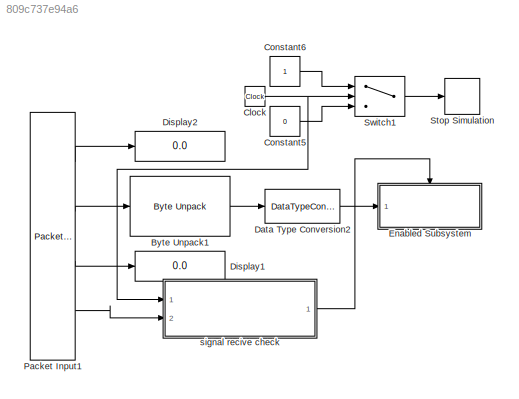
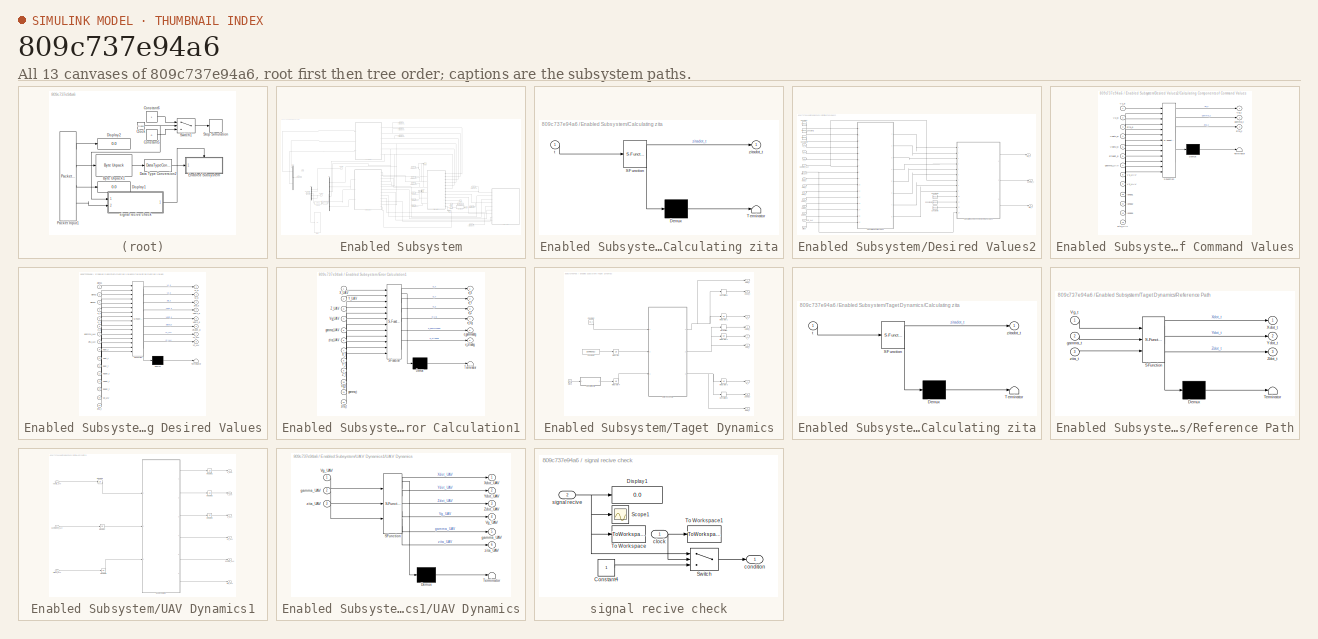
[diagram: thumbnail index - all 13 canvases of the model, root first then tree order]
MODEL slx_809c737e94a6
KIND model
CONFIG AbsTol = auto
CONFIG EnableMultiTasking = off
CONFIG FixedStep = 0.01
CONFIG InitFcn = Initial_Data_Case_3
CONFIG MaxStep = auto
CONFIG MinStep = auto
CONFIG RelTol = 1e-3
CONFIG SampleTimeConstraint = Unconstrained
CONFIG Solver = ode5
CONFIG SolverName = ode5
CONFIG StartTime = 0.0
CONFIG StopTime = 180
BLOCK [Reference] Byte Unpack1  REF=svdutilitieslib/Byte Unpack
  Ports = [1, 1]
  SourceBlock = svdutilitieslib/Byte Unpack
  SourceProductBaseCode = ARDUINO,ML_ARDUINO,ECCORTEXA,ECCORTEXR,SC_BEAGLEBONE_BLUE,EC_FREEDOM_BOARD,EC_FRDM_K64F,INTEL_BLOCKSET,MICROBIT,NUCLEO,PX4AUTOPILOTS,RASPPIIO,STMICRODIS,TIC2000,XILINX_BLOCKSET
  SourceType = Byte Unpack
BLOCK [Clock] Clock
BLOCK [Constant] Constant5
  Value = 0
BLOCK [Constant] Constant6
BLOCK [DataTypeConversion] Data Type Conversion2
  OutDataTypeStr = double
  RndMeth = Floor
  SaturateOnIntegerOverflow = off
BLOCK [Display] Display1
  Decimation = 1
  Ports = [1]
BLOCK [Display] Display2
  Decimation = 1
  Ports = [1]
BLOCK [SubSystem] Enabled Subsystem
  Ports = [1, 0, 1]
  RequestExecContextInheritance = off
  TreatAsAtomicUnit = on
BLOCK [Reference] Enabled Subsystem/Byte Pack  REF=svdutilitieslib/Byte Pack
  Ports = [1, 1]
  SourceBlock = svdutilitieslib/Byte Pack
  SourceProductBaseCode = ARDUINO,ML_ARDUINO,ECCORTEXA,ECCORTEXR,SC_BEAGLEBONE_BLUE,EC_FREEDOM_BOARD,EC_FRDM_K64F,INTEL_BLOCKSET,MICROBIT,NUCLEO,PX4AUTOPILOTS,RASPPIIO,STMICRODIS,TIC2000,XILINX_BLOCKSET
  SourceType = Byte pack
BLOCK [SubSystem] Enabled Subsystem/Calculating zita
  ErrorFcn = Stateflow.Translate.translate
  PermitHierarchicalResolution = ExplicitOnly
  Ports = [1, 1]
  RequestExecContextInheritance = off
  SFBlockType = MATLAB Function
  TreatAsAtomicUnit = on
BLOCK [Demux] Enabled Subsystem/Calculating zita/ Demux 
  Outputs = 1
  Ports = [1, 1]
BLOCK [S-Function] Enabled Subsystem/Calculating zita/ SFunction 
  EnableBusSupport = on
  FunctionName = sf_sfun
  PortCounts = [1 2]
  Ports = [1, 2]
  SFcnIsStateOwnerBlock = off
  SFunctionDeploymentMode = off
  Tag = Stateflow S-Function Project_HIL_Case_3_2018 3
BLOCK [Terminator] Enabled Subsystem/Calculating zita/ Terminator 
BLOCK [Inport] Enabled Subsystem/Calculating zita/t
BLOCK [Outport] Enabled Subsystem/Calculating zita/zitadot_t
  VectorParamsAs1DForOutWhenUnconnected = off
BLOCK [Clock] Enabled Subsystem/Clock
BLOCK [Constant] Enabled Subsystem/Constant
  Value = Vg_t
BLOCK [Constant] Enabled Subsystem/Constant1
  Value = gammadot_t
BLOCK [Constant] Enabled Subsystem/Constant3
  OutDataTypeStr = uint8
BLOCK [Constant] Enabled Subsystem/Constant4
  OutDataTypeStr = uint8
  Value = 12
BLOCK [DataTypeConversion] Enabled Subsystem/Data Type Conversion
  OutDataTypeStr = single
  RndMeth = Floor
  SaturateOnIntegerOverflow = off
BLOCK [Demux] Enabled Subsystem/Demux
  Outputs = 3
  Ports = [1, 3]
BLOCK [SubSystem] Enabled Subsystem/Desired Values2
  Ports = [13, 3]
  RequestExecContextInheritance = off
BLOCK [SubSystem] Enabled Subsystem/Desired Values2/Calculating Components of Command Values
  ErrorFcn = Stateflow.Translate.translate
  PermitHierarchicalResolution = ExplicitOnly
  Ports = [13, 3]
  RequestExecContextInheritance = off
  SFBlockType = MATLAB Function
  TreatAsAtomicUnit = on
BLOCK [Demux] Enabled Subsystem/Desired Values2/Calculating Components of Command Values/ Demux 
  Outputs = 1
  Ports = [1, 1]
BLOCK [S-Function] Enabled Subsystem/Desired Values2/Calculating Components of Command Values/ SFunction 
  EnableBusSupport = on
  FunctionName = sf_sfun
  PortCounts = [13 4]
  Ports = [13, 4]
  SFcnIsStateOwnerBlock = off
  SFunctionDeploymentMode = off
  Tag = Stateflow S-Function Project_HIL_Case_3_2018 6
BLOCK [Terminator] Enabled Subsystem/Desired Values2/Calculating Components of Command Values/ Terminator 
BLOCK [Inport] Enabled Subsystem/Desired Values2/Calculating Components of Command Values/V1_UAV
  Port = 8
BLOCK [Inport] Enabled Subsystem/Desired Values2/Calculating Components of Command Values/V1_d
BLOCK [Inport] Enabled Subsystem/Desired Values2/Calculating Components of Command Values/V2_UAV
  Port = 9
BLOCK [Inport] Enabled Subsystem/Desired Values2/Calculating Components of Command Values/V2_d
  Port = 2
BLOCK [Inport] Enabled Subsystem/Desired Values2/Calculating Components of Command Values/Vdot1_d
  Port = 4
BLOCK [Inport] Enabled Subsystem/Desired Values2/Calculating Components of Command Values/Vdot2_d
  Port = 5
BLOCK [Outport] Enabled Subsystem/Desired Values2/Calculating Components of Command Values/Vg_c
  VectorParamsAs1DForOutWhenUnconnected = off
BLOCK [Inport] Enabled Subsystem/Desired Values2/Calculating Components of Command Values/gamma_UAV
  Port = 7
BLOCK [Outport] Enabled Subsystem/Desired Values2/Calculating Components of Command Values/gamma_c
  Port = 2
  VectorParamsAs1DForOutWhenUnconnected = off
BLOCK [Inport] Enabled Subsystem/Desired Values2/Calculating Components of Command Values/landa1
  Port = 10
BLOCK [Inport] Enabled Subsystem/Desired Values2/Calculating Components of Command Values/landa2
  Port = 11
BLOCK [Inport] Enabled Subsystem/Desired Values2/Calculating Components of Command Values/landa3
  Port = 12
BLOCK [Inport] Enabled Subsystem/Desired Values2/Calculating Components of Command Values/zita_UAV
  Port = 13
BLOCK [Outport] Enabled Subsystem/Desired Values2/Calculating Components of Command Values/zita_c
  Port = 3
  VectorParamsAs1DForOutWhenUnconnected = off
BLOCK [Inport] Enabled Subsystem/Desired Values2/Calculating Components of Command Values/zita_d
  Port = 3
BLOCK [Inport] Enabled Subsystem/Desired Values2/Calculating Components of Command Values/zitadot_d
  Port = 6
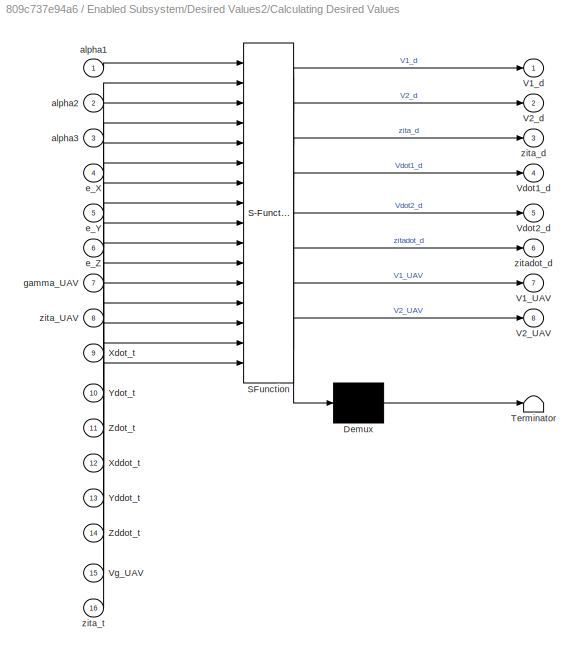
BLOCK [SubSystem] Enabled Subsystem/Desired Values2/Calculating Desired Values
  ErrorFcn = Stateflow.Translate.translate
  PermitHierarchicalResolution = ExplicitOnly
  Ports = [16, 8]
  RequestExecContextInheritance = off
  SFBlockType = MATLAB Function
  TreatAsAtomicUnit = on
BLOCK [Demux] Enabled Subsystem/Desired Values2/Calculating Desired Values/ Demux 
  Outputs = 1
  Ports = [1, 1]
BLOCK [S-Function] Enabled Subsystem/Desired Values2/Calculating Desired Values/ SFunction 
  EnableBusSupport = on
  FunctionName = sf_sfun
  PortCounts = [16 9]
  Ports = [16, 9]
  SFcnIsStateOwnerBlock = off
  SFunctionDeploymentMode = off
  Tag = Stateflow S-Function Project_HIL_Case_3_2018 7
BLOCK [Terminator] Enabled Subsystem/Desired Values2/Calculating Desired Values/ Terminator 
BLOCK [Outport] Enabled Subsystem/Desired Values2/Calculating Desired Values/V1_UAV
  Port = 7
  VectorParamsAs1DForOutWhenUnconnected = off
BLOCK [Outport] Enabled Subsystem/Desired Values2/Calculating Desired Values/V1_d
  VectorParamsAs1DForOutWhenUnconnected = off
BLOCK [Outport] Enabled Subsystem/Desired Values2/Calculating Desired Values/V2_UAV
  Port = 8
  VectorParamsAs1DForOutWhenUnconnected = off
BLOCK [Outport] Enabled Subsystem/Desired Values2/Calculating Desired Values/V2_d
  Port = 2
  VectorParamsAs1DForOutWhenUnconnected = off
BLOCK [Outport] Enabled Subsystem/Desired Values2/Calculating Desired Values/Vdot1_d
  Port = 4
  VectorParamsAs1DForOutWhenUnconnected = off
BLOCK [Outport] Enabled Subsystem/Desired Values2/Calculating Desired Values/Vdot2_d
  Port = 5
  VectorParamsAs1DForOutWhenUnconnected = off
BLOCK [Inport] Enabled Subsystem/Desired Values2/Calculating Desired Values/Vg_UAV
  Port = 15
BLOCK [Inport] Enabled Subsystem/Desired Values2/Calculating Desired Values/Xddot_t
  Port = 12
BLOCK [Inport] Enabled Subsystem/Desired Values2/Calculating Desired Values/Xdot_t
  Port = 9
BLOCK [Inport] Enabled Subsystem/Desired Values2/Calculating Desired Values/Yddot_t
  Port = 13
BLOCK [Inport] Enabled Subsystem/Desired Values2/Calculating Desired Values/Ydot_t
  Port = 10
BLOCK [Inport] Enabled Subsystem/Desired Values2/Calculating Desired Values/Zddot_t
  Port = 14
BLOCK [Inport] Enabled Subsystem/Desired Values2/Calculating Desired Values/Zdot_t
  Port = 11
BLOCK [Inport] Enabled Subsystem/Desired Values2/Calculating Desired Values/alpha1
BLOCK [Inport] Enabled Subsystem/Desired Values2/Calculating Desired Values/alpha2
  Port = 2
BLOCK [Inport] Enabled Subsystem/Desired Values2/Calculating Desired Values/alpha3
  Port = 3
BLOCK [Inport] Enabled Subsystem/Desired Values2/Calculating Desired Values/e_X
  Port = 4
BLOCK [Inport] Enabled Subsystem/Desired Values2/Calculating Desired Values/e_Y
  Port = 5
BLOCK [Inport] Enabled Subsystem/Desired Values2/Calculating Desired Values/e_Z
  Port = 6
BLOCK [Inport] Enabled Subsystem/Desired Values2/Calculating Desired Values/gamma_UAV
  Port = 7
BLOCK [Inport] Enabled Subsystem/Desired Values2/Calculating Desired Values/zita_UAV
  Port = 8
BLOCK [Outport] Enabled Subsystem/Desired Values2/Calculating Desired Values/zita_d
  Port = 3
  VectorParamsAs1DForOutWhenUnconnected = off
BLOCK [Inport] Enabled Subsystem/Desired Values2/Calculating Desired Values/zita_t
  Port = 16
BLOCK [Outport] Enabled Subsystem/Desired Values2/Calculating Desired Values/zitadot_d
  Port = 6
  VectorParamsAs1DForOutWhenUnconnected = off
BLOCK [Constant] Enabled Subsystem/Desired Values2/Constant
  Value = alpha1
BLOCK [Constant] Enabled Subsystem/Desired Values2/Constant1
  Value = alpha2
BLOCK [Constant] Enabled Subsystem/Desired Values2/Constant2
  Value = alpha3
BLOCK [Constant] Enabled Subsystem/Desired Values2/Constant3
  Value = landa1
BLOCK [Constant] Enabled Subsystem/Desired Values2/Constant4
  Value = landa2
BLOCK [Constant] Enabled Subsystem/Desired Values2/Constant5
  Value = landa3
BLOCK [Inport] Enabled Subsystem/Desired Values2/Vg_UAV
  Port = 12
BLOCK [Outport] Enabled Subsystem/Desired Values2/Vg_c
  VectorParamsAs1DForOutWhenUnconnected = off
BLOCK [Inport] Enabled Subsystem/Desired Values2/Xddot_t
  Port = 9
BLOCK [Inport] Enabled Subsystem/Desired Values2/Xdot_t
  Port = 6
BLOCK [Inport] Enabled Subsystem/Desired Values2/Yddot_t
  Port = 10
BLOCK [Inport] Enabled Subsystem/Desired Values2/Ydot_t
  Port = 7
BLOCK [Inport] Enabled Subsystem/Desired Values2/Zddot_t
  Port = 11
BLOCK [Inport] Enabled Subsystem/Desired Values2/Zdot_t
  Port = 8
BLOCK [Inport] Enabled Subsystem/Desired Values2/e_X
BLOCK [Inport] Enabled Subsystem/Desired Values2/e_Y
  Port = 2
BLOCK [Inport] Enabled Subsystem/Desired Values2/e_Z
  Port = 3
BLOCK [Inport] Enabled Subsystem/Desired Values2/gamma_UAV
  Port = 4
BLOCK [Outport] Enabled Subsystem/Desired Values2/gamma_c
  Port = 2
  VectorParamsAs1DForOutWhenUnconnected = off
BLOCK [Inport] Enabled Subsystem/Desired Values2/zita_UAV
  Port = 5
BLOCK [Outport] Enabled Subsystem/Desired Values2/zita_c
  Port = 3
  VectorParamsAs1DForOutWhenUnconnected = off
BLOCK [Inport] Enabled Subsystem/Desired Values2/zita_t
  Port = 13
BLOCK [Display] Enabled Subsystem/Display
  Decimation = 1
  Ports = [1]
BLOCK [EnablePort] Enabled Subsystem/Enable
  Ports = []
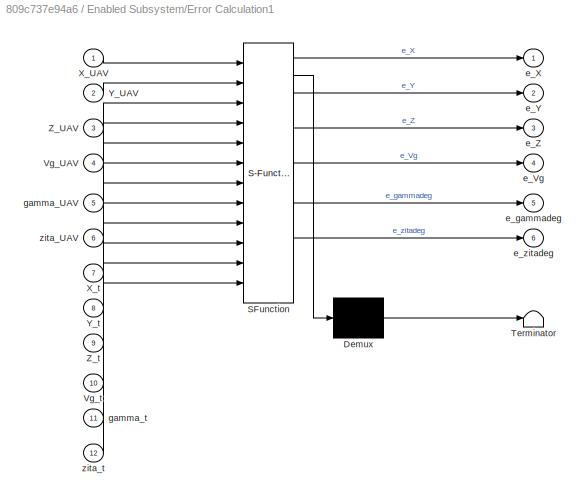
BLOCK [SubSystem] Enabled Subsystem/Error Calculation1
  ErrorFcn = Stateflow.Translate.translate
  PermitHierarchicalResolution = ExplicitOnly
  Ports = [12, 6]
  RequestExecContextInheritance = off
  SFBlockType = MATLAB Function
  TreatAsAtomicUnit = on
BLOCK [Demux] Enabled Subsystem/Error Calculation1/ Demux 
  Outputs = 1
  Ports = [1, 1]
BLOCK [S-Function] Enabled Subsystem/Error Calculation1/ SFunction 
  EnableBusSupport = on
  FunctionName = sf_sfun
  PortCounts = [12 7]
  Ports = [12, 7]
  SFcnIsStateOwnerBlock = off
  SFunctionDeploymentMode = off
  Tag = Stateflow S-Function Project_HIL_Case_3_2018 13
BLOCK [Terminator] Enabled Subsystem/Error Calculation1/ Terminator 
BLOCK [Inport] Enabled Subsystem/Error Calculation1/Vg_UAV
  Port = 4
BLOCK [Inport] Enabled Subsystem/Error Calculation1/Vg_t
  Port = 10
BLOCK [Inport] Enabled Subsystem/Error Calculation1/X_UAV
BLOCK [Inport] Enabled Subsystem/Error Calculation1/X_t
  Port = 7
BLOCK [Inport] Enabled Subsystem/Error Calculation1/Y_UAV
  Port = 2
BLOCK [Inport] Enabled Subsystem/Error Calculation1/Y_t
  Port = 8
BLOCK [Inport] Enabled Subsystem/Error Calculation1/Z_UAV
  Port = 3
BLOCK [Inport] Enabled Subsystem/Error Calculation1/Z_t
  Port = 9
BLOCK [Outport] Enabled Subsystem/Error Calculation1/e_Vg
  Port = 4
  VectorParamsAs1DForOutWhenUnconnected = off
BLOCK [Outport] Enabled Subsystem/Error Calculation1/e_X
  VectorParamsAs1DForOutWhenUnconnected = off
BLOCK [Outport] Enabled Subsystem/Error Calculation1/e_Y
  Port = 2
  VectorParamsAs1DForOutWhenUnconnected = off
BLOCK [Outport] Enabled Subsystem/Error Calculation1/e_Z
  Port = 3
  VectorParamsAs1DForOutWhenUnconnected = off
BLOCK [Outport] Enabled Subsystem/Error Calculation1/e_gammadeg
  Port = 5
  VectorParamsAs1DForOutWhenUnconnected = off
BLOCK [Outport] Enabled Subsystem/Error Calculation1/e_zitadeg
  Port = 6
  VectorParamsAs1DForOutWhenUnconnected = off
BLOCK [Inport] Enabled Subsystem/Error Calculation1/gamma_UAV
  Port = 5
BLOCK [Inport] Enabled Subsystem/Error Calculation1/gamma_t
  Port = 11
BLOCK [Inport] Enabled Subsystem/Error Calculation1/zita_UAV
  Port = 6
BLOCK [Inport] Enabled Subsystem/Error Calculation1/zita_t
  Port = 12
BLOCK [Gain] Enabled Subsystem/Gain
  Gain = 180/pi
BLOCK [Integrator] Enabled Subsystem/Integrator
  InitialCondition = 45*pi/180
  Ports = [1, 1]
BLOCK [Integrator] Enabled Subsystem/Integrator1
  InitialCondition = 0*pi/180
  Ports = [1, 1]
BLOCK [Mux] Enabled Subsystem/Mux
  DisplayOption = bar
  Inputs = 6
  Ports = [6, 1]
BLOCK [Mux] Enabled Subsystem/Mux1
  DisplayOption = bar
  Inputs = 5
  Ports = [5, 1]
BLOCK [Reference] Enabled Subsystem/Packet Output  REF=sldrtlib/Packet Output
  AttributesFormatString = Serial Port [5]
  Ports = [1]
  SourceBlock = sldrtlib/Packet Output
  SourceProductBaseCode = WT
  SourceType = Simulink Desktop Real-Time Packet Output
BLOCK [Scope] Enabled Subsystem/Scope1
  Floating = off
  NumInputPorts = 3
  Ports = [3]
  ScopeSpecificationString = Simulink.scopes.TimeScopeBlockCfg('CurrentConfiguration', extmgr.ConfigurationSet(extmgr.Configuration('Core','General UI',true,'FigureColor',[1 1 1]),extmgr.Configuration('Core','Source UI',true),extmgr.Configuration('Sources','WiredSimulink',true,'DataLoggingVariableName','ScopeData2'),extmgr.Configuration('Visuals','Time Domain',true,'SerializedDisplays',{struct('MinYLimReal','-22.82649','MaxYL...<+3126ch>
BLOCK [Scope] Enabled Subsystem/Scope2
  Floating = off
  NumInputPorts = 3
  Ports = [3]
  ScopeSpecificationString = Simulink.scopes.TimeScopeBlockCfg('CurrentConfiguration', extmgr.ConfigurationSet(extmgr.Configuration('Core','General UI',true,'FigureColor',[1 1 1]),extmgr.Configuration('Core','Source UI',true),extmgr.Configuration('Sources','WiredSimulink',true,'DataLoggingVariableName','ScopeData1'),extmgr.Configuration('Visuals','Time Domain',true,'SerializedDisplays',{struct('MinYLimReal','-3.44075','MaxYLi...<+3145ch>
BLOCK [SubSystem] Enabled Subsystem/Taget Dynamics
  Ports = [0, 9]
  RequestExecContextInheritance = off
BLOCK [SubSystem] Enabled Subsystem/Taget Dynamics/Calculating zita
  ErrorFcn = Stateflow.Translate.translate
  PermitHierarchicalResolution = ExplicitOnly
  Ports = [1, 1]
  RequestExecContextInheritance = off
  SFBlockType = MATLAB Function
  TreatAsAtomicUnit = on
BLOCK [Demux] Enabled Subsystem/Taget Dynamics/Calculating zita/ Demux 
  Outputs = 1
  Ports = [1, 1]
BLOCK [S-Function] Enabled Subsystem/Taget Dynamics/Calculating zita/ SFunction 
  EnableBusSupport = on
  FunctionName = sf_sfun
  PortCounts = [1 2]
  Ports = [1, 2]
  SFcnIsStateOwnerBlock = off
  SFunctionDeploymentMode = off
  Tag = Stateflow S-Function Project_HIL_Case_3_2018 2
BLOCK [Terminator] Enabled Subsystem/Taget Dynamics/Calculating zita/ Terminator 
BLOCK [Inport] Enabled Subsystem/Taget Dynamics/Calculating zita/t
BLOCK [Outport] Enabled Subsystem/Taget Dynamics/Calculating zita/zitadot_t
  VectorParamsAs1DForOutWhenUnconnected = off
BLOCK [Clock] Enabled Subsystem/Taget Dynamics/Clock
BLOCK [Constant] Enabled Subsystem/Taget Dynamics/Constant
  Value = Vg_t
BLOCK [Constant] Enabled Subsystem/Taget Dynamics/Constant1
  Value = gammadot_t
BLOCK [Derivative] Enabled Subsystem/Taget Dynamics/Derivative
BLOCK [Derivative] Enabled Subsystem/Taget Dynamics/Derivative1
BLOCK [Derivative] Enabled Subsystem/Taget Dynamics/Derivative2
BLOCK [Integrator] Enabled Subsystem/Taget Dynamics/Integrator
  InitialCondition = 45*pi/180
  Ports = [1, 1]
BLOCK [Integrator] Enabled Subsystem/Taget Dynamics/Integrator1
  InitialCondition = 100
  Ports = [1, 1]
BLOCK [Integrator] Enabled Subsystem/Taget Dynamics/Integrator2
  InitialCondition = 100
  Ports = [1, 1]
BLOCK [Integrator] Enabled Subsystem/Taget Dynamics/Integrator3
  InitialCondition = 100
  Ports = [1, 1]
BLOCK [Integrator] Enabled Subsystem/Taget Dynamics/Integrator4
  InitialCondition = 0*pi/180
  Ports = [1, 1]
BLOCK [SubSystem] Enabled Subsystem/Taget Dynamics/Reference Path
  ErrorFcn = Stateflow.Translate.translate
  PermitHierarchicalResolution = ExplicitOnly
  Ports = [3, 3]
  RequestExecContextInheritance = off
  SFBlockType = MATLAB Function
  TreatAsAtomicUnit = on
BLOCK [Demux] Enabled Subsystem/Taget Dynamics/Reference Path/ Demux 
  Outputs = 1
  Ports = [1, 1]
BLOCK [S-Function] Enabled Subsystem/Taget Dynamics/Reference Path/ SFunction 
  EnableBusSupport = on
  FunctionName = sf_sfun
  PortCounts = [3 4]
  Ports = [3, 4]
  SFcnIsStateOwnerBlock = off
  SFunctionDeploymentMode = off
  Tag = Stateflow S-Function Project_HIL_Case_3_2018 14
BLOCK [Terminator] Enabled Subsystem/Taget Dynamics/Reference Path/ Terminator 
BLOCK [Inport] Enabled Subsystem/Taget Dynamics/Reference Path/Vg_t
BLOCK [Outport] Enabled Subsystem/Taget Dynamics/Reference Path/Xdot_t
  VectorParamsAs1DForOutWhenUnconnected = off
BLOCK [Outport] Enabled Subsystem/Taget Dynamics/Reference Path/Ydot_t
  Port = 2
  VectorParamsAs1DForOutWhenUnconnected = off
BLOCK [Outport] Enabled Subsystem/Taget Dynamics/Reference Path/Zdot_t
  Port = 3
  VectorParamsAs1DForOutWhenUnconnected = off
BLOCK [Inport] Enabled Subsystem/Taget Dynamics/Reference Path/gamma_t
  Port = 2
BLOCK [Inport] Enabled Subsystem/Taget Dynamics/Reference Path/zita_t
  Port = 3
BLOCK [Outport] Enabled Subsystem/Taget Dynamics/X_t
  VectorParamsAs1DForOutWhenUnconnected = off
BLOCK [Outport] Enabled Subsystem/Taget Dynamics/Xddot_t
  Port = 2
  VectorParamsAs1DForOutWhenUnconnected = off
BLOCK [Outport] Enabled Subsystem/Taget Dynamics/Xdot_t
  Port = 3
  VectorParamsAs1DForOutWhenUnconnected = off
BLOCK [Outport] Enabled Subsystem/Taget Dynamics/Y_t
  Port = 4
  VectorParamsAs1DForOutWhenUnconnected = off
BLOCK [Outport] Enabled Subsystem/Taget Dynamics/Yddot_t
  Port = 5
  VectorParamsAs1DForOutWhenUnconnected = off
BLOCK [Outport] Enabled Subsystem/Taget Dynamics/Ydot_t
  Port = 6
  VectorParamsAs1DForOutWhenUnconnected = off
BLOCK [Outport] Enabled Subsystem/Taget Dynamics/Z_t
  Port = 7
  VectorParamsAs1DForOutWhenUnconnected = off
BLOCK [Outport] Enabled Subsystem/Taget Dynamics/Zddot_t
  Port = 8
  VectorParamsAs1DForOutWhenUnconnected = off
BLOCK [Outport] Enabled Subsystem/Taget Dynamics/Zdot_t
  Port = 9
  VectorParamsAs1DForOutWhenUnconnected = off
BLOCK [ToWorkspace] Enabled Subsystem/To Workspace13
  FixptAsFi = on
  MaxDataPoints = inf
  Ports = [1]
  SampleTime = -1
  SaveFormat = Timeseries
  VariableName = X_UAV
BLOCK [ToWorkspace] Enabled Subsystem/To Workspace14
  FixptAsFi = on
  MaxDataPoints = inf
  Ports = [1]
  SampleTime = -1
  SaveFormat = Timeseries
  VariableName = Y_UAV
BLOCK [ToWorkspace] Enabled Subsystem/To Workspace15
  FixptAsFi = on
  MaxDataPoints = inf
  Ports = [1]
  SampleTime = -1
  SaveFormat = Timeseries
  VariableName = Z_UAV
BLOCK [ToWorkspace] Enabled Subsystem/To Workspace16
  FixptAsFi = on
  MaxDataPoints = inf
  Ports = [1]
  SampleTime = -1
  SaveFormat = Timeseries
  VariableName = e_X
BLOCK [ToWorkspace] Enabled Subsystem/To Workspace17
  FixptAsFi = on
  MaxDataPoints = inf
  Ports = [1]
  SampleTime = -1
  SaveFormat = Timeseries
  VariableName = e_Y
BLOCK [ToWorkspace] Enabled Subsystem/To Workspace18
  FixptAsFi = on
  MaxDataPoints = inf
  Ports = [1]
  SampleTime = -1
  SaveFormat = Timeseries
  VariableName = e_Z
BLOCK [ToWorkspace] Enabled Subsystem/To Workspace19
  FixptAsFi = on
  MaxDataPoints = inf
  Ports = [1]
  SampleTime = -1
  SaveFormat = Timeseries
  VariableName = e_Vg
BLOCK [ToWorkspace] Enabled Subsystem/To Workspace20
  FixptAsFi = on
  MaxDataPoints = inf
  Ports = [1]
  SampleTime = -1
  SaveFormat = Timeseries
  VariableName = e_gammadeg
BLOCK [ToWorkspace] Enabled Subsystem/To Workspace21
  FixptAsFi = on
  MaxDataPoints = inf
  Ports = [1]
  SampleTime = -1
  SaveFormat = Timeseries
  VariableName = e_zitadeg
BLOCK [ToWorkspace] Enabled Subsystem/To Workspace25
  FixptAsFi = on
  MaxDataPoints = inf
  Ports = [1]
  SampleTime = -1
  SaveFormat = Timeseries
  VariableName = X_t
BLOCK [ToWorkspace] Enabled Subsystem/To Workspace26
  FixptAsFi = on
  MaxDataPoints = inf
  Ports = [1]
  SampleTime = -1
  SaveFormat = Timeseries
  VariableName = Y_t
BLOCK [ToWorkspace] Enabled Subsystem/To Workspace27
  FixptAsFi = on
  MaxDataPoints = inf
  Ports = [1]
  SampleTime = -1
  SaveFormat = Timeseries
  VariableName = Z_t
BLOCK [SubSystem] Enabled Subsystem/UAV Dynamics1
  Ports = [3, 6]
  RequestExecContextInheritance = off
BLOCK [Integrator] Enabled Subsystem/UAV Dynamics1/Integrator1
  InitialCondition = 80
  Ports = [1, 1]
BLOCK [Integrator] Enabled Subsystem/UAV Dynamics1/Integrator2
  InitialCondition = 90
  Ports = [1, 1]
BLOCK [Integrator] Enabled Subsystem/UAV Dynamics1/Integrator3
  InitialCondition = 70
  Ports = [1, 1]
BLOCK [Integrator] Enabled Subsystem/UAV Dynamics1/Integrator6
  InitialCondition = 8
  Ports = [1, 1]
BLOCK [Integrator] Enabled Subsystem/UAV Dynamics1/Integrator7
  InitialCondition = 0*pi/180
  Ports = [1, 1]
BLOCK [Integrator] Enabled Subsystem/UAV Dynamics1/Integrator8
  InitialCondition = 0*pi/180
  Ports = [1, 1]
BLOCK [SubSystem] Enabled Subsystem/UAV Dynamics1/UAV Dynamics
  ErrorFcn = Stateflow.Translate.translate
  PermitHierarchicalResolution = ExplicitOnly
  Ports = [3, 6]
  RequestExecContextInheritance = off
  SFBlockType = MATLAB Function
  TreatAsAtomicUnit = on
BLOCK [Demux] Enabled Subsystem/UAV Dynamics1/UAV Dynamics/ Demux 
  Outputs = 1
  Ports = [1, 1]
BLOCK [S-Function] Enabled Subsystem/UAV Dynamics1/UAV Dynamics/ SFunction 
  EnableBusSupport = on
  FunctionName = sf_sfun
  PortCounts = [3 7]
  Ports = [3, 7]
  SFcnIsStateOwnerBlock = off
  SFunctionDeploymentMode = off
  Tag = Stateflow S-Function Project_HIL_Case_3_2018 15
BLOCK [Terminator] Enabled Subsystem/UAV Dynamics1/UAV Dynamics/ Terminator 
BLOCK [Outport] Enabled Subsystem/UAV Dynamics1/UAV Dynamics/Vg_UAV
  Port = 4
  VectorParamsAs1DForOutWhenUnconnected = off
BLOCK [Inport] Enabled Subsystem/UAV Dynamics1/UAV Dynamics/Vg_UAV 
BLOCK [Outport] Enabled Subsystem/UAV Dynamics1/UAV Dynamics/Xdot_UAV
  VectorParamsAs1DForOutWhenUnconnected = off
BLOCK [Outport] Enabled Subsystem/UAV Dynamics1/UAV Dynamics/Ydot_UAV
  Port = 2
  VectorParamsAs1DForOutWhenUnconnected = off
BLOCK [Outport] Enabled Subsystem/UAV Dynamics1/UAV Dynamics/Zdot_UAV
  Port = 3
  VectorParamsAs1DForOutWhenUnconnected = off
BLOCK [Outport] Enabled Subsystem/UAV Dynamics1/UAV Dynamics/gamma_UAV
  Port = 5
  VectorParamsAs1DForOutWhenUnconnected = off
BLOCK [Inport] Enabled Subsystem/UAV Dynamics1/UAV Dynamics/gamma_UAV 
  Port = 2
BLOCK [Outport] Enabled Subsystem/UAV Dynamics1/UAV Dynamics/zita_UAV
  Port = 6
  VectorParamsAs1DForOutWhenUnconnected = off
BLOCK [Inport] Enabled Subsystem/UAV Dynamics1/UAV Dynamics/zita_UAV 
  Port = 3
BLOCK [Inport] Enabled Subsystem/UAV Dynamics1/Vdotg_UAV
BLOCK [Outport] Enabled Subsystem/UAV Dynamics1/Vg_UAV
  Port = 4
  VectorParamsAs1DForOutWhenUnconnected = off
BLOCK [Outport] Enabled Subsystem/UAV Dynamics1/X_UAV
  VectorParamsAs1DForOutWhenUnconnected = off
BLOCK [Outport] Enabled Subsystem/UAV Dynamics1/Y_UAV
  Port = 2
  VectorParamsAs1DForOutWhenUnconnected = off
BLOCK [Outport] Enabled Subsystem/UAV Dynamics1/Z_UAV
  Port = 3
  VectorParamsAs1DForOutWhenUnconnected = off
BLOCK [Outport] Enabled Subsystem/UAV Dynamics1/gamma_UAV
  Port = 5
  VectorParamsAs1DForOutWhenUnconnected = off
BLOCK [Inport] Enabled Subsystem/UAV Dynamics1/gammadot_UAV
  Port = 2
BLOCK [Outport] Enabled Subsystem/UAV Dynamics1/zita_UAV
  Port = 6
  VectorParamsAs1DForOutWhenUnconnected = off
BLOCK [Inport] Enabled Subsystem/UAV Dynamics1/zitadot_UAV
  Port = 3
BLOCK [Inport] Enabled Subsystem/control signals
BLOCK [Reference] Packet Input1  REF=sldrtlib/Packet Input
  AttributesFormatString = Serial Port [5]
  Ports = [0, 4]
  SourceBlock = sldrtlib/Packet Input
  SourceProductBaseCode = WT
  SourceType = Simulink Desktop Real-Time Packet Input
BLOCK [Stop] Stop Simulation
BLOCK [Switch] Switch1
  Criteria = u2 > Threshold
  InputSameDT = off
  SaturateOnIntegerOverflow = off
  Threshold = 179
BLOCK [SubSystem] signal recive check
  Ports = [2, 1]
  RequestExecContextInheritance = off
BLOCK [Constant] signal recive check/Constant4
BLOCK [Display] signal recive check/Display1
  Decimation = 1
  Ports = [1]
BLOCK [Scope] signal recive check/Scope1
  Floating = off
  NumInputPorts = 1
  Ports = [1]
  ScopeSpecificationString = Simulink.scopes.TimeScopeBlockCfg('CurrentConfiguration', extmgr.ConfigurationSet(extmgr.Configuration('Core','General UI',true),extmgr.Configuration('Core','Source UI',true),extmgr.Configuration('Sources','WiredSimulink',true,'DataLoggingVariableName','ScopeData1'),extmgr.Configuration('Visuals','Time Domain',true,'SerializedDisplays',{struct('MinYLimReal','-0.125','MaxYLimReal','1.05336','YLabel...<+1444ch>
BLOCK [Switch] signal recive check/Switch
  Criteria = u2 > Threshold
  InputSameDT = off
  SaturateOnIntegerOverflow = off
  Threshold = 0.005
BLOCK [ToWorkspace] signal recive check/To Workspace
  FixptAsFi = on
  MaxDataPoints = inf
  Ports = [1]
  SampleTime = -1
  VariableName = IsRecived
BLOCK [ToWorkspace] signal recive check/To Workspace1
  FixptAsFi = on
  MaxDataPoints = inf
  Ports = [1]
  SampleTime = -1
  VariableName = Clock
BLOCK [Inport] signal recive check/clock
BLOCK [Outport] signal recive check/condition
BLOCK [Inport] signal recive check/signal recive
  Port = 2
LINE Byte Unpack1:1 -> Data Type Conversion2:1
NET Clock:1 -> Switch1:2, signal recive check:1
LINE Constant5:1 -> Switch1:3
LINE Constant6:1 -> Switch1:1
LINE Data Type Conversion2:1 -> Enabled Subsystem:1
LINE Enabled Subsystem/Byte Pack:1 -> Enabled Subsystem/Mux1:3
LINE Enabled Subsystem/Calculating zita:1 -> Enabled Subsystem/Integrator1:1
LINE Enabled Subsystem/Clock:1 -> Enabled Subsystem/Calculating zita:1
LINE Enabled Subsystem/Constant1:1 -> Enabled Subsystem/Integrator:1
NET Enabled Subsystem/Constant3:1 -> Enabled Subsystem/Mux1:1, Enabled Subsystem/Mux1:2
NET Enabled Subsystem/Constant4:1 -> Enabled Subsystem/Mux1:4, Enabled Subsystem/Mux1:5
LINE Enabled Subsystem/Constant:1 -> Enabled Subsystem/Error Calculation1:10
LINE Enabled Subsystem/Data Type Conversion:1 -> Enabled Subsystem/Byte Pack:1
LINE Enabled Subsystem/Demux:1 -> Enabled Subsystem/UAV Dynamics1:1
LINE Enabled Subsystem/Demux:2 -> Enabled Subsystem/UAV Dynamics1:2
LINE Enabled Subsystem/Demux:3 -> Enabled Subsystem/UAV Dynamics1:3
LINE Enabled Subsystem/Desired Values2/Calculating Components of Command Values:1 -> Enabled Subsystem/Desired Values2/Vg_c:1
LINE Enabled Subsystem/Desired Values2/Calculating Components of Command Values:2 -> Enabled Subsystem/Desired Values2/gamma_c:1
LINE Enabled Subsystem/Desired Values2/Calculating Components of Command Values:3 -> Enabled Subsystem/Desired Values2/zita_c:1
LINE Enabled Subsystem/Desired Values2/Calculating Desired Values:1 -> Enabled Subsystem/Desired Values2/Calculating Components of Command Values:1
LINE Enabled Subsystem/Desired Values2/Calculating Desired Values:2 -> Enabled Subsystem/Desired Values2/Calculating Components of Command Values:2
LINE Enabled Subsystem/Desired Values2/Calculating Desired Values:3 -> Enabled Subsystem/Desired Values2/Calculating Components of Command Values:3
LINE Enabled Subsystem/Desired Values2/Calculating Desired Values:4 -> Enabled Subsystem/Desired Values2/Calculating Components of Command Values:4
LINE Enabled Subsystem/Desired Values2/Calculating Desired Values:5 -> Enabled Subsystem/Desired Values2/Calculating Components of Command Values:5
LINE Enabled Subsystem/Desired Values2/Calculating Desired Values:6 -> Enabled Subsystem/Desired Values2/Calculating Components of Command Values:6
LINE Enabled Subsystem/Desired Values2/Calculating Desired Values:7 -> Enabled Subsystem/Desired Values2/Calculating Components of Command Values:8
LINE Enabled Subsystem/Desired Values2/Calculating Desired Values:8 -> Enabled Subsystem/Desired Values2/Calculating Components of Command Values:9
LINE Enabled Subsystem/Desired Values2/Constant1:1 -> Enabled Subsystem/Desired Values2/Calculating Desired Values:2
LINE Enabled Subsystem/Desired Values2/Constant2:1 -> Enabled Subsystem/Desired Values2/Calculating Desired Values:3
LINE Enabled Subsystem/Desired Values2/Constant3:1 -> Enabled Subsystem/Desired Values2/Calculating Components of Command Values:10
LINE Enabled Subsystem/Desired Values2/Constant4:1 -> Enabled Subsystem/Desired Values2/Calculating Components of Command Values:11
LINE Enabled Subsystem/Desired Values2/Constant5:1 -> Enabled Subsystem/Desired Values2/Calculating Components of Command Values:12
LINE Enabled Subsystem/Desired Values2/Constant:1 -> Enabled Subsystem/Desired Values2/Calculating Desired Values:1
LINE Enabled Subsystem/Desired Values2/Vg_UAV:1 -> Enabled Subsystem/Desired Values2/Calculating Desired Values:15
LINE Enabled Subsystem/Desired Values2/Xddot_t:1 -> Enabled Subsystem/Desired Values2/Calculating Desired Values:12
LINE Enabled Subsystem/Desired Values2/Xdot_t:1 -> Enabled Subsystem/Desired Values2/Calculating Desired Values:9
LINE Enabled Subsystem/Desired Values2/Yddot_t:1 -> Enabled Subsystem/Desired Values2/Calculating Desired Values:13
LINE Enabled Subsystem/Desired Values2/Ydot_t:1 -> Enabled Subsystem/Desired Values2/Calculating Desired Values:10
LINE Enabled Subsystem/Desired Values2/Zddot_t:1 -> Enabled Subsystem/Desired Values2/Calculating Desired Values:14
LINE Enabled Subsystem/Desired Values2/Zdot_t:1 -> Enabled Subsystem/Desired Values2/Calculating Desired Values:11
LINE Enabled Subsystem/Desired Values2/e_X:1 -> Enabled Subsystem/Desired Values2/Calculating Desired Values:4
LINE Enabled Subsystem/Desired Values2/e_Y:1 -> Enabled Subsystem/Desired Values2/Calculating Desired Values:5
LINE Enabled Subsystem/Desired Values2/e_Z:1 -> Enabled Subsystem/Desired Values2/Calculating Desired Values:6
NET Enabled Subsystem/Desired Values2/gamma_UAV:1 -> Enabled Subsystem/Desired Values2/Calculating Components of Command Values:7, Enabled Subsystem/Desired Values2/Calculating Desired Values:7
NET Enabled Subsystem/Desired Values2/zita_UAV:1 -> Enabled Subsystem/Desired Values2/Calculating Components of Command Values:13, Enabled Subsystem/Desired Values2/Calculating Desired Values:8
LINE Enabled Subsystem/Desired Values2/zita_t:1 -> Enabled Subsystem/Desired Values2/Calculating Desired Values:16
LINE Enabled Subsystem/Desired Values2:1 -> Enabled Subsystem/Mux:2
LINE Enabled Subsystem/Desired Values2:2 -> Enabled Subsystem/Mux:5
LINE Enabled Subsystem/Desired Values2:3 -> Enabled Subsystem/Mux:6
NET Enabled Subsystem/Error Calculation1:1 -> Enabled Subsystem/Desired Values2:1, Enabled Subsystem/Scope1:1, Enabled Subsystem/To Workspace16:1
NET Enabled Subsystem/Error Calculation1:2 -> Enabled Subsystem/Desired Values2:2, Enabled Subsystem/Scope1:2, Enabled Subsystem/To Workspace17:1
NET Enabled Subsystem/Error Calculation1:3 -> Enabled Subsystem/Desired Values2:3, Enabled Subsystem/Scope1:3, Enabled Subsystem/To Workspace18:1
NET Enabled Subsystem/Error Calculation1:4 -> Enabled Subsystem/Scope2:1, Enabled Subsystem/To Workspace19:1
NET Enabled Subsystem/Error Calculation1:5 -> Enabled Subsystem/Scope2:2, Enabled Subsystem/To Workspace20:1
NET Enabled Subsystem/Error Calculation1:6 -> Enabled Subsystem/Scope2:3, Enabled Subsystem/To Workspace21:1
LINE Enabled Subsystem/Gain:1 -> Enabled Subsystem/Desired Values2:13
NET Enabled Subsystem/Integrator1:1 -> Enabled Subsystem/Error Calculation1:12, Enabled Subsystem/Gain:1
LINE Enabled Subsystem/Integrator:1 -> Enabled Subsystem/Error Calculation1:11
NET Enabled Subsystem/Mux1:1 -> Enabled Subsystem/Display:1, Enabled Subsystem/Packet Output:1
LINE Enabled Subsystem/Mux:1 -> Enabled Subsystem/Data Type Conversion:1
LINE Enabled Subsystem/Taget Dynamics/Calculating zita:1 -> Enabled Subsystem/Taget Dynamics/Integrator4:1
LINE Enabled Subsystem/Taget Dynamics/Clock:1 -> Enabled Subsystem/Taget Dynamics/Calculating zita:1
LINE Enabled Subsystem/Taget Dynamics/Constant1:1 -> Enabled Subsystem/Taget Dynamics/Integrator:1
LINE Enabled Subsystem/Taget Dynamics/Constant:1 -> Enabled Subsystem/Taget Dynamics/Reference Path:1
LINE Enabled Subsystem/Taget Dynamics/Derivative1:1 -> Enabled Subsystem/Taget Dynamics/Xddot_t:1
LINE Enabled Subsystem/Taget Dynamics/Derivative2:1 -> Enabled Subsystem/Taget Dynamics/Zddot_t:1
LINE Enabled Subsystem/Taget Dynamics/Derivative:1 -> Enabled Subsystem/Taget Dynamics/Yddot_t:1
LINE Enabled Subsystem/Taget Dynamics/Integrator1:1 -> Enabled Subsystem/Taget Dynamics/X_t:1
LINE Enabled Subsystem/Taget Dynamics/Integrator2:1 -> Enabled Subsystem/Taget Dynamics/Y_t:1
LINE Enabled Subsystem/Taget Dynamics/Integrator3:1 -> Enabled Subsystem/Taget Dynamics/Z_t:1
LINE Enabled Subsystem/Taget Dynamics/Integrator4:1 -> Enabled Subsystem/Taget Dynamics/Reference Path:3
LINE Enabled Subsystem/Taget Dynamics/Integrator:1 -> Enabled Subsystem/Taget Dynamics/Reference Path:2
NET Enabled Subsystem/Taget Dynamics/Reference Path:1 -> Enabled Subsystem/Taget Dynamics/Derivative1:1, Enabled Subsystem/Taget Dynamics/Integrator1:1, Enabled Subsystem/Taget Dynamics/Xdot_t:1
NET Enabled Subsystem/Taget Dynamics/Reference Path:2 -> Enabled Subsystem/Taget Dynamics/Derivative:1, Enabled Subsystem/Taget Dynamics/Integrator2:1, Enabled Subsystem/Taget Dynamics/Ydot_t:1
NET Enabled Subsystem/Taget Dynamics/Reference Path:3 -> Enabled Subsystem/Taget Dynamics/Derivative2:1, Enabled Subsystem/Taget Dynamics/Integrator3:1, Enabled Subsystem/Taget Dynamics/Zdot_t:1
NET Enabled Subsystem/Taget Dynamics:1 -> Enabled Subsystem/Error Calculation1:7, Enabled Subsystem/To Workspace25:1
LINE Enabled Subsystem/Taget Dynamics:2 -> Enabled Subsystem/Desired Values2:9
LINE Enabled Subsystem/Taget Dynamics:3 -> Enabled Subsystem/Desired Values2:6
NET Enabled Subsystem/Taget Dynamics:4 -> Enabled Subsystem/Error Calculation1:8, Enabled Subsystem/To Workspace26:1
LINE Enabled Subsystem/Taget Dynamics:5 -> Enabled Subsystem/Desired Values2:10
LINE Enabled Subsystem/Taget Dynamics:6 -> Enabled Subsystem/Desired Values2:7
NET Enabled Subsystem/Taget Dynamics:7 -> Enabled Subsystem/Error Calculation1:9, Enabled Subsystem/To Workspace27:1
LINE Enabled Subsystem/Taget Dynamics:8 -> Enabled Subsystem/Desired Values2:11
LINE Enabled Subsystem/Taget Dynamics:9 -> Enabled Subsystem/Desired Values2:8
LINE Enabled Subsystem/UAV Dynamics1/Integrator1:1 -> Enabled Subsystem/UAV Dynamics1/X_UAV:1
LINE Enabled Subsystem/UAV Dynamics1/Integrator2:1 -> Enabled Subsystem/UAV Dynamics1/Y_UAV:1
LINE Enabled Subsystem/UAV Dynamics1/Integrator3:1 -> Enabled Subsystem/UAV Dynamics1/Z_UAV:1
LINE Enabled Subsystem/UAV Dynamics1/Integrator6:1 -> Enabled Subsystem/UAV Dynamics1/UAV Dynamics:1
LINE Enabled Subsystem/UAV Dynamics1/Integrator7:1 -> Enabled Subsystem/UAV Dynamics1/UAV Dynamics:2
LINE Enabled Subsystem/UAV Dynamics1/Integrator8:1 -> Enabled Subsystem/UAV Dynamics1/UAV Dynamics:3
LINE Enabled Subsystem/UAV Dynamics1/UAV Dynamics:1 -> Enabled Subsystem/UAV Dynamics1/Integrator1:1
LINE Enabled Subsystem/UAV Dynamics1/UAV Dynamics:2 -> Enabled Subsystem/UAV Dynamics1/Integrator2:1
LINE Enabled Subsystem/UAV Dynamics1/UAV Dynamics:3 -> Enabled Subsystem/UAV Dynamics1/Integrator3:1
LINE Enabled Subsystem/UAV Dynamics1/UAV Dynamics:4 -> Enabled Subsystem/UAV Dynamics1/Vg_UAV:1
LINE Enabled Subsystem/UAV Dynamics1/UAV Dynamics:5 -> Enabled Subsystem/UAV Dynamics1/gamma_UAV:1
LINE Enabled Subsystem/UAV Dynamics1/UAV Dynamics:6 -> Enabled Subsystem/UAV Dynamics1/zita_UAV:1
LINE Enabled Subsystem/UAV Dynamics1/Vdotg_UAV:1 -> Enabled Subsystem/UAV Dynamics1/Integrator6:1
LINE Enabled Subsystem/UAV Dynamics1/gammadot_UAV:1 -> Enabled Subsystem/UAV Dynamics1/Integrator7:1
LINE Enabled Subsystem/UAV Dynamics1/zitadot_UAV:1 -> Enabled Subsystem/UAV Dynamics1/Integrator8:1
NET Enabled Subsystem/UAV Dynamics1:1 -> Enabled Subsystem/Error Calculation1:1, Enabled Subsystem/To Workspace13:1
NET Enabled Subsystem/UAV Dynamics1:2 -> Enabled Subsystem/Error Calculation1:2, Enabled Subsystem/To Workspace14:1
NET Enabled Subsystem/UAV Dynamics1:3 -> Enabled Subsystem/Error Calculation1:3, Enabled Subsystem/To Workspace15:1
NET Enabled Subsystem/UAV Dynamics1:4 -> Enabled Subsystem/Desired Values2:12, Enabled Subsystem/Error Calculation1:4, Enabled Subsystem/Mux:1
NET Enabled Subsystem/UAV Dynamics1:5 -> Enabled Subsystem/Desired Values2:4, Enabled Subsystem/Error Calculation1:5, Enabled Subsystem/Mux:3
NET Enabled Subsystem/UAV Dynamics1:6 -> Enabled Subsystem/Desired Values2:5, Enabled Subsystem/Error Calculation1:6, Enabled Subsystem/Mux:4
LINE Enabled Subsystem/control signals:1 -> Enabled Subsystem/Demux:1
LINE Packet Input1:1 -> Display2:1
LINE Packet Input1:2 -> Byte Unpack1:1
LINE Packet Input1:3 -> Display1:1
LINE Packet Input1:4 -> signal recive check:2
LINE Switch1:1 -> Stop Simulation:1
LINE signal recive check/Constant4:1 -> signal recive check/Switch:3
LINE signal recive check/Switch:1 -> signal recive check/condition:1
NET signal recive check/clock:1 -> signal recive check/Switch:2, signal recive check/To Workspace1:1
NET signal recive check/signal recive:1 -> signal recive check/Display1:1, signal recive check/Scope1:1, signal recive check/Switch:1, signal recive check/To Workspace:1
LINE signal recive check:1 -> Enabled Subsystem:enable
note: NET lines group one-source signal fan-out (src -> all destinations, sorted); 1:1 wires keep LINE
CHART Enabled
Subsystem/Taget Dynamics/Calculating zita states=1 transitions=1
  STATE_LABEL 'eML_blk_kernel()'
  STATE_LABEL 'SCRIPT:\nfunction zitadot_t = fcn(t)\n\nzitadot_t = sin((2*pi/30)*t);\n'
CHART Enabled
Subsystem/Calculating zita states=1 transitions=1
  STATE_LABEL 'eML_blk_kernel()'
  STATE_LABEL 'SCRIPT:\nfunction zitadot_t = fcn(t)\n\nzitadot_t = sin((2*pi/30)*t);\n'
CHART Enabled
Subsystem/Desired Values2/Calculating Components of Command Values states=1 transitions=1
  STATE_LABEL 'eML_blk_kernel()'
  STATE_LABEL 'SCRIPT:\nfunction [Vg_c,gamma_c,zita_c] = fcn(V1_d,V2_d,zita_d,Vdot1_d,Vdot2_d,zitadot_d,gamma_UAV, V1_UAV,V2_UAV,landa1,landa2,landa3,zita_UAV)\n\nVg_c1 = -Vdot1_d + landa1*(V1_UAV - V1_d);\nVg_c2 = -Vdot2_d + landa2*(V2_UAV - V2_d);\nVg_c = Vg_c1*cos(gamma_UAV) + Vg_c2*sin(gamma_UAV);\ngamma_c1 = -Vdot1_d + landa1*(V1_UAV - V1_d);\ngamma_c2 = -Vdot2_d + landa2*(V2_UAV - V2_d);\ngamma_c = -sin(gamma_UAV)...<+86ch>'
CHART Enabled
Subsystem/Desired Values2/Calculating Desired Values states=1 transitions=1
  STATE_LABEL 'eML_blk_kernel()'
  STATE_LABEL 'SCRIPT:\nfunction [V1_d,V2_d,zita_d,Vdot1_d,Vdot2_d,zitadot_d,V1_UAV,V2_UAV] = fcn(alpha1,alpha2,alpha3,e_X,e_Y,e_Z,gamma_UAV,zita_UAV,Xdot_t,Ydot_t,Zdot_t,Xddot_t,Yddot_t,Zddot_t,Vg_UAV,zita_t)\n\nV1_UAV = Vg_UAV*cos(gamma_UAV);\nV2_UAV = Vg_UAV*sin(gamma_UAV);\nV1_d = sqrt((-alpha1*e_X + Xdot_t)^2 + (-alpha2*e_Y + Ydot_t)^2);\nV2_d = -alpha3*e_Z + Zdot_t;\ny = (-alpha2*e_Y + Ydot_t);\nx = (-alpha1*e_X +...<+687ch>'
CHART Enabled
Subsystem/Error Calculation1 states=1 transitions=1
  STATE_LABEL 'eML_blk_kernel()'
  STATE_LABEL 'SCRIPT:\nfunction [e_X,e_Y,e_Z,e_Vg,e_gammadeg,e_zitadeg] = fcn(X_UAV,Y_UAV,Z_UAV,Vg_UAV,gamma_UAV,zita_UAV,X_t,Y_t,Z_t,Vg_t,gamma_t,zita_t)\n\ne_X = X_UAV - X_t;\ne_Y = Y_UAV - Y_t;\ne_Z = Z_UAV - Z_t;\ne_Vg = Vg_UAV - Vg_t;\ne_gamma = gamma_UAV - gamma_t;\ne_zita = zita_UAV - zita_t;\ne_gammadeg = e_gamma*(180/pi);\ne_zitadeg = e_zita*(180/pi);\n'
CHART Enabled
Subsystem/Taget Dynamics/Reference Path states=1 transitions=1
  STATE_LABEL 'eML_blk_kernel()'
  STATE_LABEL 'SCRIPT:\nfunction [Xdot_t,Ydot_t,Zdot_t]  = fcn(Vg_t,gamma_t,zita_t)\n\nXdot_t = Vg_t*cos(gamma_t)*cos(zita_t);\nYdot_t = Vg_t*cos(gamma_t)*sin(zita_t);\nZdot_t = Vg_t*sin(gamma_t);'
CHART Enabled
Subsystem/UAV Dynamics1/UAV Dynamics states=1 transitions=1
  STATE_LABEL 'eML_blk_kernel()'
  STATE_LABEL 'SCRIPT:\nfunction [Xdot_UAV,Ydot_UAV,Zdot_UAV,Vg_UAV,gamma_UAV,zita_UAV]  = fcn(Vg_UAV,gamma_UAV,zita_UAV)\n\nXdot_UAV = Vg_UAV*cos(gamma_UAV)*cos(zita_UAV);\nYdot_UAV = Vg_UAV*cos(gamma_UAV)*sin(zita_UAV);\nZdot_UAV = Vg_UAV*sin(gamma_UAV);\n'
